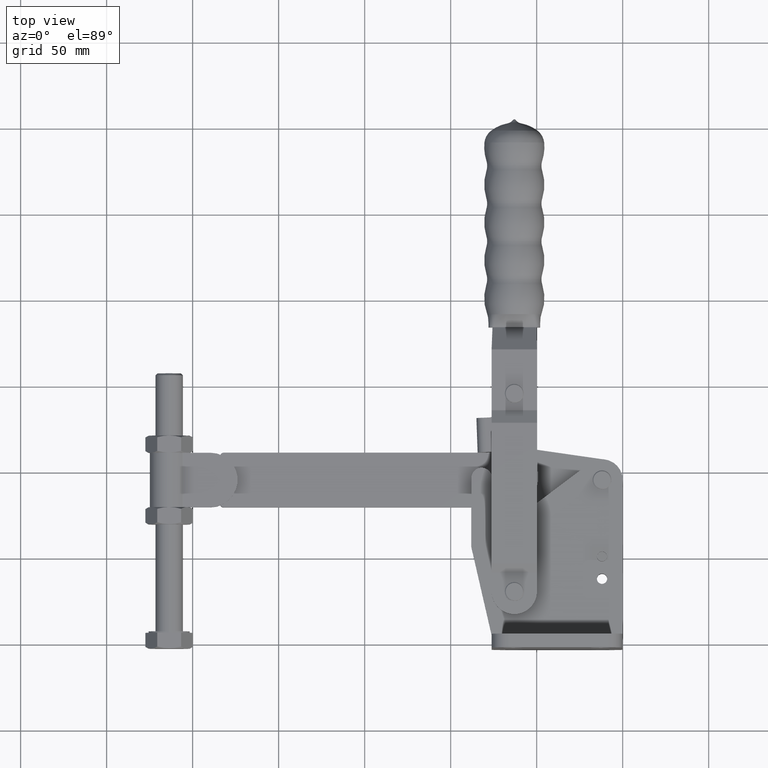
[diagram: clean part render]
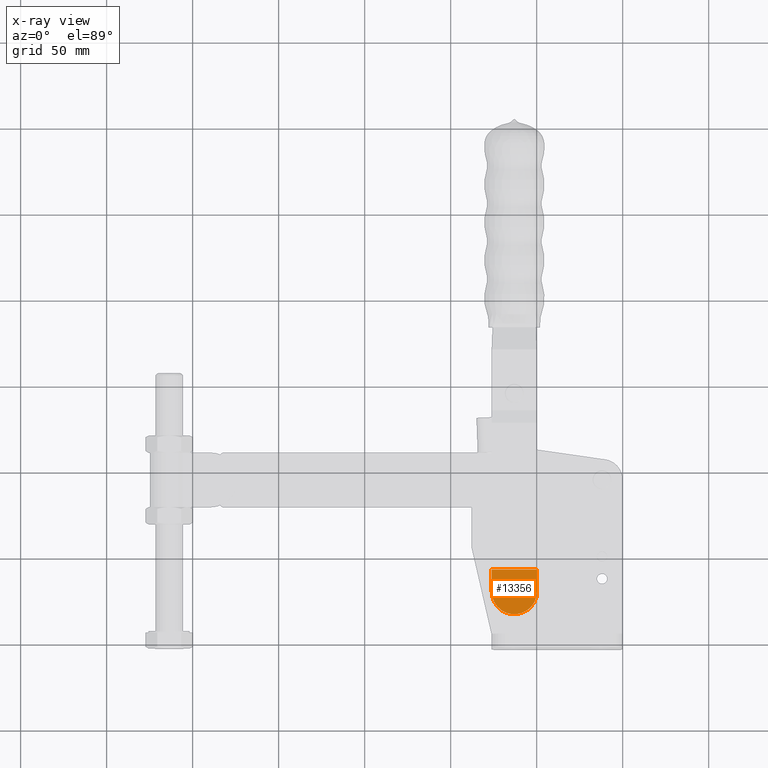
[diagram: x-ray — body ghosted, one internal face saturated and labeled with its STEP entity id]
A machine part, top view, then the same camera in x-ray: the body is ghosted and one INTERNAL B-rep face — a face not visible from any outside direction — is saturated and labeled: STEP entity #13356.
In plain terms, the highlighted planar face has unit normal (-0, -0, -1).
Its self-contained STEP definition (entity closure, byte-faithful):
#51 = EDGE_CURVE ( 'NONE', #993, #245, #1579, .T. ) ;
#161 = DIRECTION ( 'NONE',  ( 7.632783294297925600E-016, 1.000000000000000000, -6.205027346991913900E-016 ) ) ;
#245 = VERTEX_POINT ( 'NONE', #2000 ) ;
#418 = DIRECTION ( 'NONE',  ( -4.926614671774117400E-016, -6.205027346991910900E-016, -1.000000000000000000 ) ) ;
#761 = DIRECTION ( 'NONE',  ( -1.000000000000000000, 7.632783294297927500E-016, 4.926614671774112400E-016 ) ) ;
#795 = ORIENTED_EDGE ( 'NONE', *, *, #8219, .F. ) ;
#993 = VERTEX_POINT ( 'NONE', #4896 ) ;
#1093 = CARTESIAN_POINT ( 'NONE',  ( -76.20000000000001700, 42.76750037515006400, 4.999999999999926300 ) ) ;
#1274 = EDGE_CURVE ( 'NONE', #2815, #13173, #1877, .T. ) ;
#1579 = CIRCLE ( 'NONE', #12112, 13.19999999999999600 ) ;
#1667 = AXIS2_PLACEMENT_3D ( 'NONE', #12662, #6367, #161 ) ;
#1877 = LINE ( 'NONE', #4746, #12665 ) ;
#2000 = CARTESIAN_POINT ( 'NONE',  ( -76.20000000000003100, 30.00000000000001100, 4.999999999999933400 ) ) ;
#2186 = FACE_OUTER_BOUND ( 'NONE', #6265, .T. ) ;
#2815 = VERTEX_POINT ( 'NONE', #10828 ) ;
#3198 = VERTEX_POINT ( 'NONE', #11606 ) ;
#3965 = EDGE_CURVE ( 'NONE', #993, #2815, #5583, .T. ) ;
#3972 = CARTESIAN_POINT ( 'NONE',  ( -63.00000000000002800, 26.99999999999998900, 4.999999999999927200 ) ) ;
#4683 = LINE ( 'NONE', #1093, #12707 ) ;
#4746 = CARTESIAN_POINT ( 'NONE',  ( -50.30000000000001800, 42.76750037515004300, 4.999999999999912100 ) ) ;
#4896 = CARTESIAN_POINT ( 'NONE',  ( -49.80000000000002600, 29.99999999999998900, 4.999999999999919200 ) ) ;
#4970 = FACE_BOUND ( 'NONE', #8436, .T. ) ;
#5578 = ORIENTED_EDGE ( 'NONE', *, *, #6315, .F. ) ;
#5583 = LINE ( 'NONE', #13067, #11159 ) ;
#5606 = CARTESIAN_POINT ( 'NONE',  ( -63.00000000000002800, 30.00000000000000000, 4.999999999999925400 ) ) ;
#6198 = CARTESIAN_POINT ( 'NONE',  ( -63.00000000000002800, 30.00000000000000000, 4.999999999999926300 ) ) ;
#6265 = EDGE_LOOP ( 'NONE', ( #12481, #8825, #13505, #13471 ) ) ;
#6315 = EDGE_CURVE ( 'NONE', #12205, #3198, #6475, .T. ) ;
#6367 = DIRECTION ( 'NONE',  ( -4.926614671774117400E-016, -6.205027346991909900E-016, -1.000000000000000000 ) ) ;
#6475 = CIRCLE ( 'NONE', #11267, 3.000000000000009800 ) ;
#6617 = CARTESIAN_POINT ( 'NONE',  ( -63.00000000000002800, 30.00000000000000000, 4.999999999999925400 ) ) ;
#6653 = DIRECTION ( 'NONE',  ( 0.0000000000000000000, 1.000000000000000000, -5.782411586589337900E-016 ) ) ;
#6943 = EDGE_CURVE ( 'NONE', #13173, #245, #4683, .T. ) ;
#7315 = DIRECTION ( 'NONE',  ( -7.632783294297925600E-016, -1.000000000000000000, 6.296710548815752600E-016 ) ) ;
#7486 = DIRECTION ( 'NONE',  ( -4.926614671774117400E-016, -6.205027346991910900E-016, -1.000000000000000000 ) ) ;
#7683 = DIRECTION ( 'NONE',  ( 0.0000000000000000000, 1.000000000000000000, -5.782411586589337900E-016 ) ) ;
#8107 = AXIS2_PLACEMENT_3D ( 'NONE', #6617, #418, #7683 ) ;
#8219 = EDGE_CURVE ( 'NONE', #3198, #12205, #8330, .T. ) ;
#8330 = CIRCLE ( 'NONE', #8107, 3.000000000000009800 ) ;
#8436 = EDGE_LOOP ( 'NONE', ( #5578, #795 ) ) ;
#8825 = ORIENTED_EDGE ( 'NONE', *, *, #51, .T. ) ;
#10828 = CARTESIAN_POINT ( 'NONE',  ( -49.80000000000001800, 42.76750037515004300, 4.999999999999912100 ) ) ;
#11159 = VECTOR ( 'NONE', #13418, 1000.000000000000000 ) ;
#11267 = AXIS2_PLACEMENT_3D ( 'NONE', #5606, #12941, #6653 ) ;
#11314 = DIRECTION ( 'NONE',  ( 1.051347561198065200E-015, 1.000000000000000000, -5.913830031739116500E-016 ) ) ;
#11606 = CARTESIAN_POINT ( 'NONE',  ( -63.00000000000002800, 33.00000000000000700, 4.999999999999923600 ) ) ;
#11611 = PLANE ( 'NONE',  #1667 ) ;
#12112 = AXIS2_PLACEMENT_3D ( 'NONE', #6198, #7486, #11314 ) ;
#12205 = VERTEX_POINT ( 'NONE', #3972 ) ;
#12481 = ORIENTED_EDGE ( 'NONE', *, *, #3965, .F. ) ;
#12662 = CARTESIAN_POINT ( 'NONE',  ( -50.30000000000001800, 41.09999999999998700, 4.999999999999912100 ) ) ;
#12665 = VECTOR ( 'NONE', #761, 1000.000000000000000 ) ;
#12707 = VECTOR ( 'NONE', #7315, 1000.000000000000000 ) ;
#12941 = DIRECTION ( 'NONE',  ( -4.926614671774117400E-016, -6.205027346991910900E-016, -1.000000000000000000 ) ) ;
#13067 = CARTESIAN_POINT ( 'NONE',  ( -49.80000000000004000, 16.79999999999999000, 4.999999999999928100 ) ) ;
#13173 = VERTEX_POINT ( 'NONE', #13371 ) ;
#13356 = ADVANCED_FACE ( 'NONE', ( #2186, #4970 ), #11611, .T. ) ;
#13371 = CARTESIAN_POINT ( 'NONE',  ( -76.20000000000001700, 42.76750037515006400, 4.999999999999926300 ) ) ;
#13418 = DIRECTION ( 'NONE',  ( 7.632783294297925600E-016, 1.000000000000000000, -6.296710548815752600E-016 ) ) ;
#13471 = ORIENTED_EDGE ( 'NONE', *, *, #1274, .F. ) ;
#13505 = ORIENTED_EDGE ( 'NONE', *, *, #6943, .F. ) ;